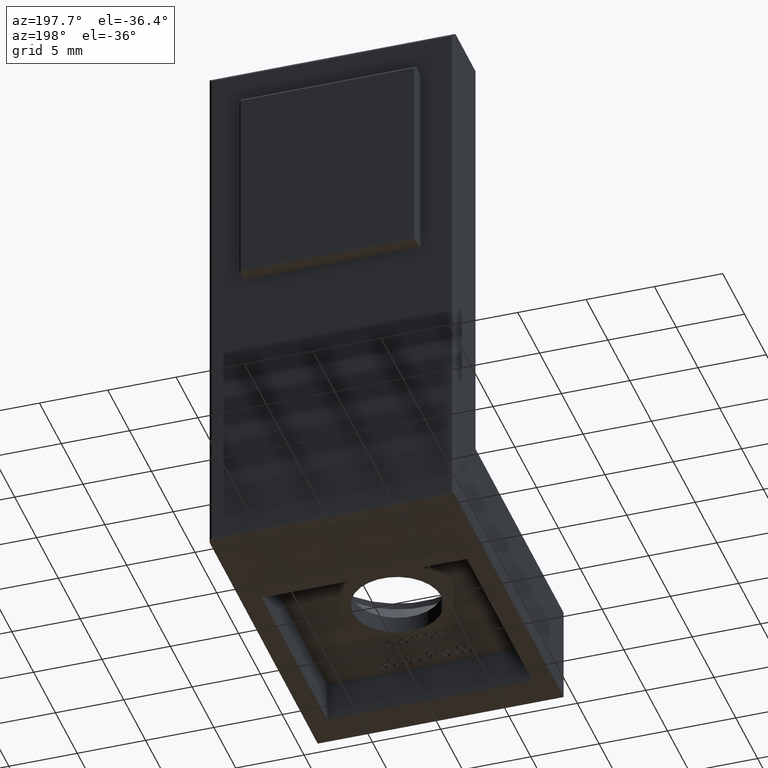
[diagram: clean part render]
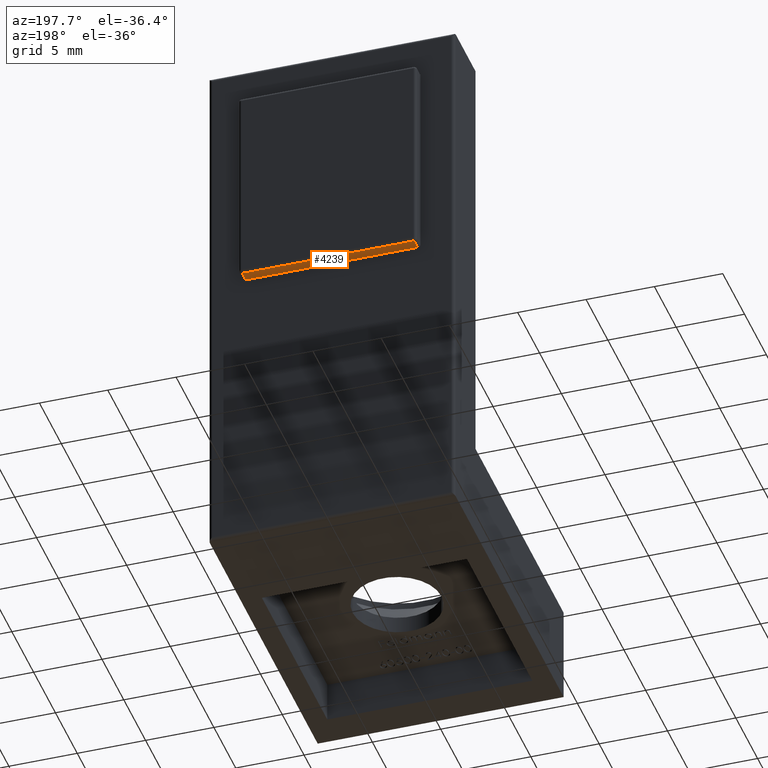
[diagram: same view with one face highlighted and labeled with its STEP entity id]
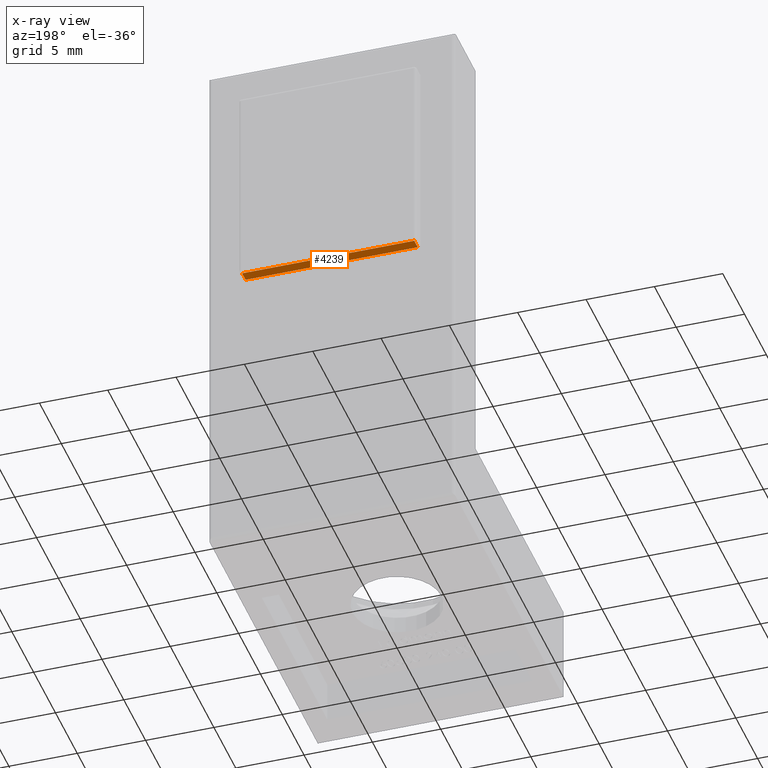
[diagram: x-ray of the same camera — body ghosted, the highlighted face saturated]
A machine part, auxiliary view. The second image highlights one B-rep face of the part: STEP entity #4239.
The next image is the same camera in x-ray: the body ghosted, the highlighted face saturated — about 0% of this face is hidden behind the body in this view.
In plain terms, the highlighted planar face has unit normal (0, -0, 1).
Its self-contained STEP definition (entity closure, byte-faithful):
#188 = DIRECTION ( 'NONE',  ( 1.000000000000000000, -0.0000000000000000000, -0.0000000000000000000 ) ) ;
#459 = CARTESIAN_POINT ( 'NONE',  ( 6.500000000000000000, 0.0000000000000000000, 22.00000000000000000 ) ) ;
#572 = DIRECTION ( 'NONE',  ( -1.000000000000000000, 0.0000000000000000000, 0.0000000000000000000 ) ) ;
#1003 = DIRECTION ( 'NONE',  ( 1.000000000000000000, 0.0000000000000000000, -0.0000000000000000000 ) ) ;
#1246 = LINE ( 'NONE', #459, #1646 ) ;
#1325 = VECTOR ( 'NONE', #9490, 1000.000000000000000 ) ;
#1432 = LINE ( 'NONE', #14177, #10292 ) ;
#1496 = CARTESIAN_POINT ( 'NONE',  ( -6.299999999999999800, 0.8000000000000000400, 22.00000000000000000 ) ) ;
#1646 = VECTOR ( 'NONE', #572, 1000.000000000000000 ) ;
#2684 = AXIS2_PLACEMENT_3D ( 'NONE', #16374, #15325, #1003 ) ;
#3280 = VERTEX_POINT ( 'NONE', #6858 ) ;
#3720 = EDGE_CURVE ( 'NONE', #4389, #5859, #1246, .T. ) ;
#3947 = ORIENTED_EDGE ( 'NONE', *, *, #12451, .T. ) ;
#4239 = ADVANCED_FACE ( 'NONE', ( #9114 ), #7428, .F. ) ;
#4389 = VERTEX_POINT ( 'NONE', #7003 ) ;
#5859 = VERTEX_POINT ( 'NONE', #8549 ) ;
#6363 = VECTOR ( 'NONE', #188, 1000.000000000000000 ) ;
#6370 = EDGE_CURVE ( 'NONE', #3280, #4389, #1432, .T. ) ;
#6858 = CARTESIAN_POINT ( 'NONE',  ( 6.299999999999999800, 0.8000000000000000400, 22.00000000000000000 ) ) ;
#7003 = CARTESIAN_POINT ( 'NONE',  ( 6.299999999999999800, 0.0000000000000000000, 22.00000000000000000 ) ) ;
#7050 = ORIENTED_EDGE ( 'NONE', *, *, #6370, .T. ) ;
#7428 = PLANE ( 'NONE',  #2684 ) ;
#7832 = CARTESIAN_POINT ( 'NONE',  ( 6.500000000000000000, 0.8000000000000000400, 22.00000000000000000 ) ) ;
#8328 = CARTESIAN_POINT ( 'NONE',  ( -6.299999999999998900, 1.000000000000000000, 22.00000000000000000 ) ) ;
#8549 = CARTESIAN_POINT ( 'NONE',  ( -6.299999999999995400, 0.0000000000000000000, 22.00000000000000000 ) ) ;
#9079 = EDGE_LOOP ( 'NONE', ( #15893, #10203, #3947, #7050 ) ) ;
#9114 = FACE_OUTER_BOUND ( 'NONE', #9079, .T. ) ;
#9221 = VERTEX_POINT ( 'NONE', #1496 ) ;
#9490 = DIRECTION ( 'NONE',  ( -0.0000000000000000000, 1.000000000000000000, -0.0000000000000000000 ) ) ;
#9761 = LINE ( 'NONE', #7832, #6363 ) ;
#10203 = ORIENTED_EDGE ( 'NONE', *, *, #11947, .T. ) ;
#10292 = VECTOR ( 'NONE', #16399, 1000.000000000000000 ) ;
#11178 = LINE ( 'NONE', #8328, #1325 ) ;
#11947 = EDGE_CURVE ( 'NONE', #5859, #9221, #11178, .T. ) ;
#12451 = EDGE_CURVE ( 'NONE', #9221, #3280, #9761, .T. ) ;
#14177 = CARTESIAN_POINT ( 'NONE',  ( 6.299999999999999800, 1.000000000000000000, 22.00000000000000000 ) ) ;
#15325 = DIRECTION ( 'NONE',  ( 0.0000000000000000000, -0.0000000000000000000, 1.000000000000000000 ) ) ;
#15893 = ORIENTED_EDGE ( 'NONE', *, *, #3720, .T. ) ;
#16374 = CARTESIAN_POINT ( 'NONE',  ( 6.500000000000000000, 1.000000000000000000, 22.00000000000000000 ) ) ;
#16399 = DIRECTION ( 'NONE',  ( 0.0000000000000000000, -1.000000000000000000, 0.0000000000000000000 ) ) ;